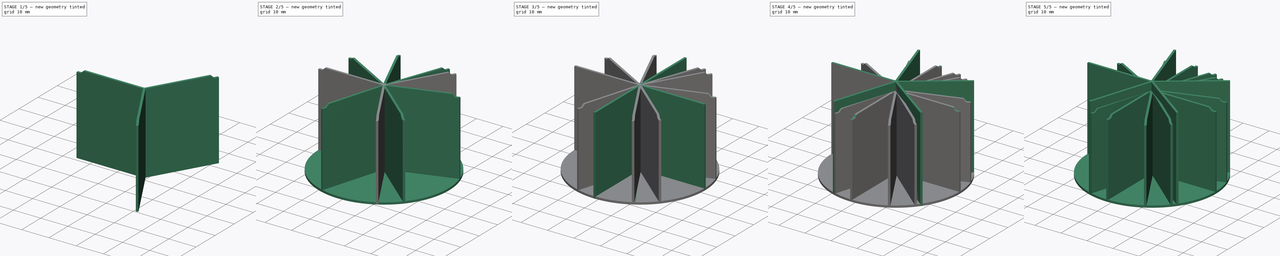
[diagram: build sequence overview — one tinted view per stage of 5, left to right]
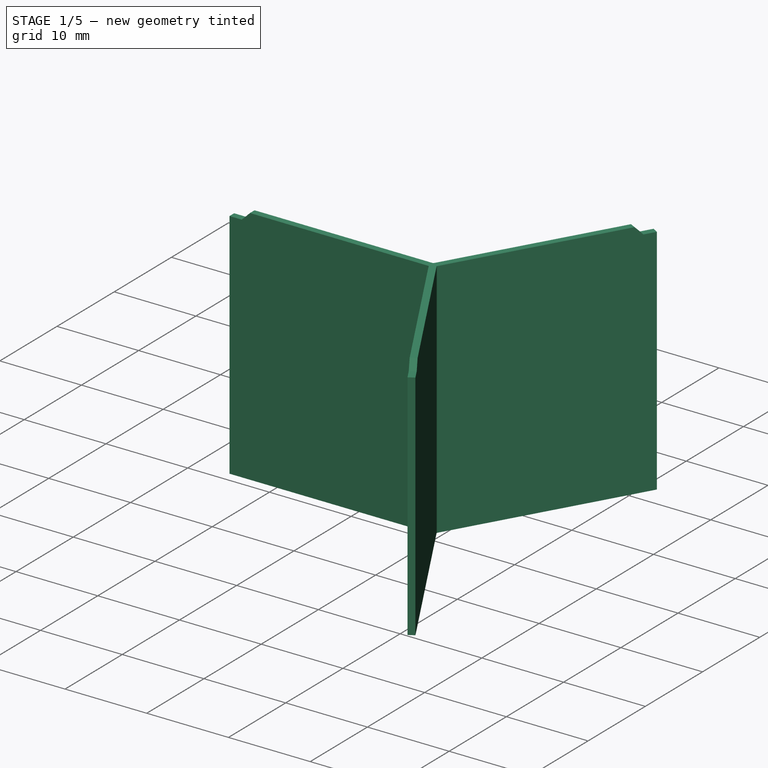
[diagram: stage 1 of 5 — iso view after this stage's code; geometry added in this stage tinted green]
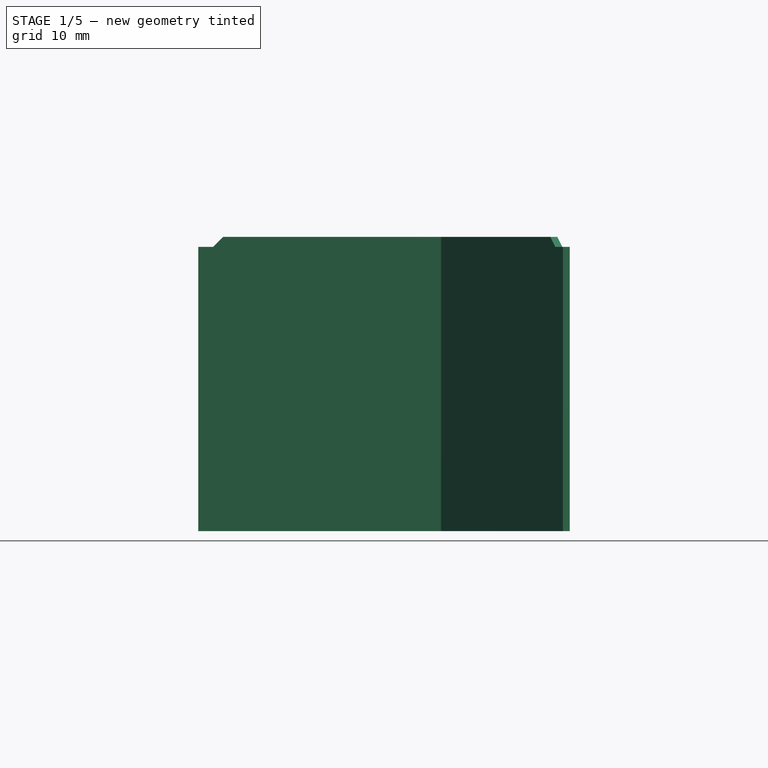
[diagram: stage 1 of 5 — front view after this stage's code; geometry added in this stage tinted green]
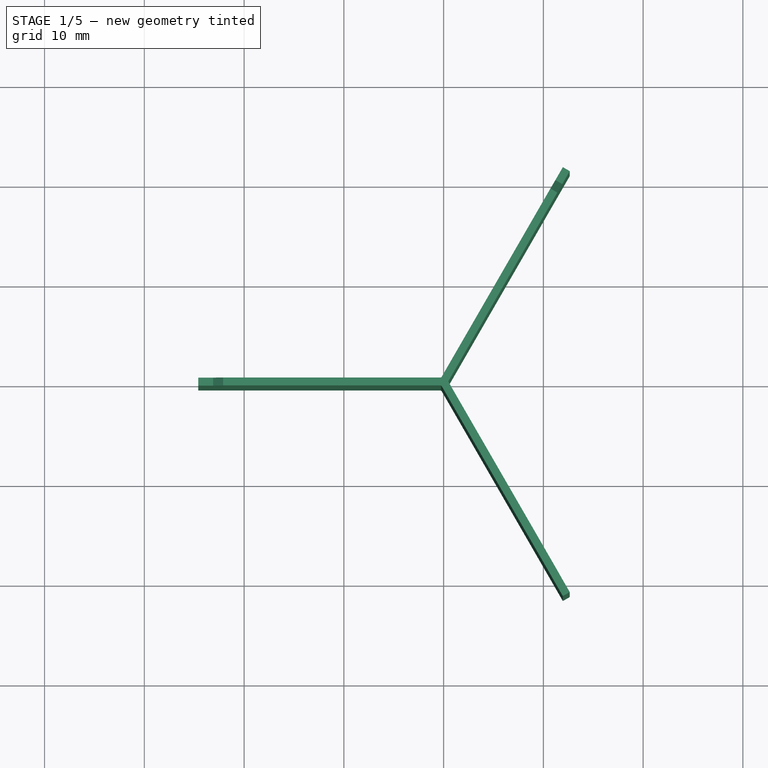
[diagram: stage 1 of 5 — top view after this stage's code; geometry added in this stage tinted green]
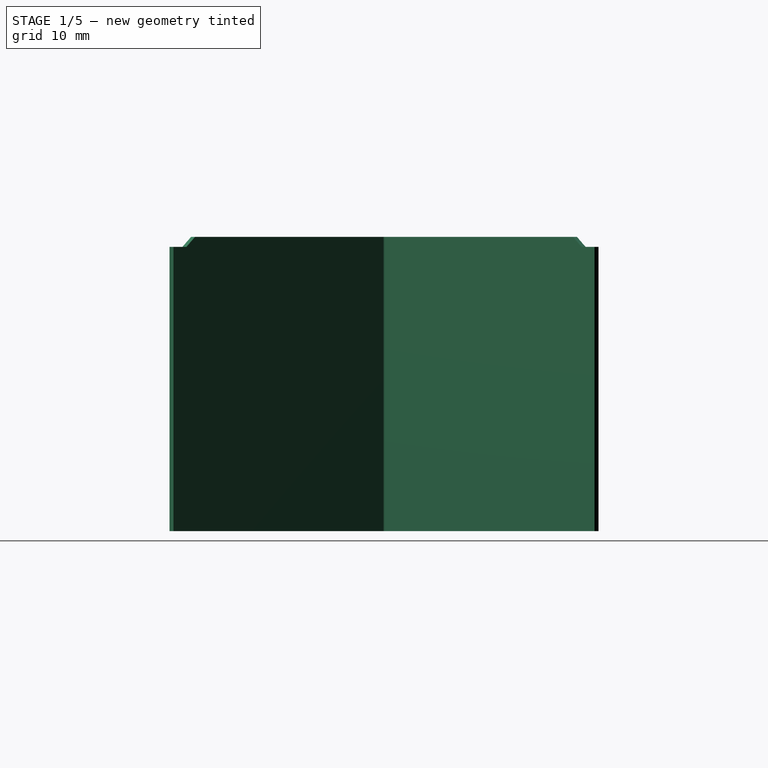
[diagram: stage 1 of 5 — right view after this stage's code; geometry added in this stage tinted green]
FCSTD DOCUMENT  (FreeCAD 1.0R39109 (Git))
Label: JarDivider
License: All rights reserved
LicenseURL: http://en.wikipedia.org/wiki/All_rights_reserved
objects: Sketcher::SketchObject×13, PartDesign::Pad×8, PartDesign::Body×5, PartDesign::ShapeBinder×4, PartDesign::Groove×4, PartDesign::Fillet×3
note: 80 computed .brp shape members not serialized (recipe doc carries the construction recipe); baked Part::Feature solids carry a one-line shape summary decoded from their .brp

FEATURE [PartDesign::Body] Body003  label="Growing"
  AllowCompound = false
  Group = -> [ShapeBinder002,Sketch009,Pad004,Sketch010,Groove002,Sketch011,Pad005]
  Origin = -> Origin003
  Tip = -> Pad005
FEATURE [PartDesign::ShapeBinder] ShapeBinder003
  Support = -> [Sketch]
  TraceSupport = false
FEATURE [Sketcher::SketchObject] Sketch012
  ArcFitTolerance = 1e-06
  AttachmentSupport = -> [XY_Plane001]
  ExternalGeometry = -> [ShapeBinder003]
  FullyConstrained = true
  MakeInternals = false
  MapMode = 5
  expr: .Constraints.Diameter = <<Sketch>>.Constraints.Diameter
  sketch-geometry (16):
    g0: Circle [constr] CenterX=0 CenterY=0 CenterZ=0 NormalX=0 NormalY=0 NormalZ=1 AngleXU=0 Radius=24.6
    g1: LineSegment [constr] StartX=12.3 StartY=21.3042 StartZ=0 EndX=-24.6 EndY=0 EndZ=0
    g2: LineSegment [constr] StartX=-24.6 StartY=0 StartZ=0 EndX=12.3 EndY=-21.3042 EndZ=0
    g3: LineSegment [constr] StartX=12.3 StartY=-21.3042 StartZ=0 EndX=12.3 EndY=21.3042 EndZ=0
    g4: LineSegment [constr] StartX=0 StartY=0 StartZ=0 EndX=12.3 EndY=21.3042 EndZ=0
    g5: LineSegment [constr] StartX=0 StartY=0 StartZ=0 EndX=12.3 EndY=-21.3042 EndZ=0
    g6: LineSegment [constr] StartX=0 StartY=0 StartZ=0 EndX=-24.6 EndY=0 EndZ=0
    g7: LineSegment StartX=11.952 StartY=21.5014 StartZ=0 EndX=-0.23094 EndY=0.4 EndZ=0
    g8: LineSegment StartX=12.6448 StartY=21.1014 StartZ=0 EndX=0.46188 EndY=-7.1e-15 EndZ=0
    g9: LineSegment StartX=12.6448 StartY=-21.1014 StartZ=0 EndX=0.46188 EndY=-7.1e-15 EndZ=0
    g10: LineSegment StartX=11.952 StartY=-21.5014 StartZ=0 EndX=-0.23094 EndY=-0.4 EndZ=0
    g11: LineSegment StartX=-24.5967 StartY=-0.4 StartZ=0 EndX=-0.23094 EndY=-0.4 EndZ=0
    g12: LineSegment StartX=-24.5967 StartY=0.4 StartZ=0 EndX=-0.23094 EndY=0.4 EndZ=0
    g13: LineSegment StartX=-24.5967 StartY=0.4 StartZ=0 EndX=-24.5967 EndY=-0.4 EndZ=0
    g14: LineSegment StartX=11.952 StartY=21.5014 StartZ=0 EndX=12.6448 EndY=21.1014 EndZ=0
    g15: LineSegment StartX=11.952 StartY=-21.5014 StartZ=0 EndX=12.6448 EndY=-21.1014 EndZ=0
  constraints (41):
    c: PointOnObject(g1,g0)
    c: Coincident(g1,g2)
    c: PointOnObject(g2,g0)
    c: Coincident(g2,g3)
    c: PointOnObject(g3,g0)
    c: Equal(g1,g2)
    c: Equal(g2,g3)
    c: Coincident(g4,g3)
    c: Coincident(g5,g2)
    c: Coincident(g6,g1)
    c: Diameter(g0) = 49.2  'Diameter'
    c: PointOnObject(g7,g0)
    c: PointOnObject(g9,g0)
    c: PointOnObject(g11,g0)
    c: Parallel(g11,g12)
    c: Parallel(g12,g6)
    c: Parallel(g7,g8)
    c: Parallel(g8,g4)
    c: Parallel(g9,g10)
    c: Parallel(g10,g5)
    c: Coincident(g13,g12)
    c: Coincident(g13,g11)
    c: Coincident(g14,g7)
    c: Coincident(g15,g10)
    c: Coincident(g15,g9)
    c: Coincident(g14,g8)
    c: Coincident(g9,g8)
    c: Coincident(g10,g11)
    c: Symmetric(g11,g12,g6)
    c: Symmetric(g10,g9,g5)
    c: Symmetric(g8,g7,g4)
    c: Equal(g14,g15)
    c: Distance(g13) = 0.8
    c: Coincident(g0,g4)
    c: Coincident(g0,g5)
    c: Coincident(g0,g6)
    c: Coincident(g0,g-3)
    c: Horizontal(g6)
    c: Coincident(g1,g3)
    c: Coincident(g7,g12)
    c: Equal(g13,g14)
FEATURE [PartDesign::Pad] Pad006
  Direction = (0,0,1)
  Length = 29.5
  Length2 = 10
  Profile = -> Sketch012
  ReferenceAxis = -> Sketch012 [N_Axis]
  Suppressed = false
  Type = 0
  expr: Length = 29.5 mm
FEATURE [Sketcher::SketchObject] Sketch013
  ArcFitTolerance = 1e-06
  AttachmentSupport = -> [XZ_Plane001]
  ExternalGeometry = -> [ShapeBinder003]
  FullyConstrained = true
  MakeInternals = false
  MapMode = 5
  Placement = pos=(0,0,0) rot=(1,0,0;1.5708rad)
  expr: Constraints[2] = <<Pad006>>.Length
  sketch-geometry (5):
    g0: LineSegment [constr] StartX=-24.6 StartY=0 StartZ=0 EndX=-24.6 EndY=29.5 EndZ=0
    g1: LineSegment StartX=-24.6 StartY=28.5 StartZ=0 EndX=-23.1 EndY=28.5 EndZ=0
    g2: LineSegment StartX=-23.1 StartY=28.5 StartZ=0 EndX=-22.1 EndY=29.5 EndZ=0
    g3: LineSegment StartX=-22.1 StartY=29.5 StartZ=0 EndX=-24.6 EndY=29.5 EndZ=0
    g4: LineSegment StartX=-24.6 StartY=29.5 StartZ=0 EndX=-24.6 EndY=28.5 EndZ=0
  constraints (14):
    c: Coincident(g0,g-3)
    c: Vertical(g0)
    c: DistanceY(g0,g0) = 29.5
    c: PointOnObject(g1,g0)
    c: Horizontal(g1)
    c: Coincident(g1,g2)
    c: Coincident(g2,g3)
    c: Coincident(g3,g0)
    c: Coincident(g3,g4)
    c: Coincident(g4,g1)
    c: Horizontal(g3)
    c: DistanceX(g1,g1) = 1.5
    c: Angle(g3,g2) = 0.785398
    c: DistanceY(g4,g4) = 1
FEATURE [Sketcher::SketchObject] Sketch014
  ArcFitTolerance = 1e-06
  AttachmentSupport = -> [XY_Plane001]
  ExternalGeometry = -> [ShapeBinder003]
  FullyConstrained = true
  MakeInternals = false
  MapMode = 5
  sketch-geometry (1):
    g0: Circle CenterX=0 CenterY=0 CenterZ=0 NormalX=0 NormalY=0 NormalZ=1 AngleXU=0 Radius=24.6
  constraints (2):
    c: Coincident(g0,g-3)
    c: Equal(g0,g-3)
FEATURE [PartDesign::Fillet] Fillet002
  Base = -> Pad006 [Edge2,Edge11,Edge20]
  BaseFeature = -> Pad006
  Radius = 0.15
  SupportTransform = false
  Suppressed = false
  UseAllEdges = false
FEATURE [PartDesign::Groove] Groove003
  Angle = 360
  Angle2 = 60
  Axis = (0,2e-16,1)
  Base = (0,0,0)
  BaseFeature = -> Fillet002
  Profile = -> Sketch013
  ReferenceAxis = -> Sketch013 [V_Axis]
  Reversed = true
  Suppressed = false
  Type = 0
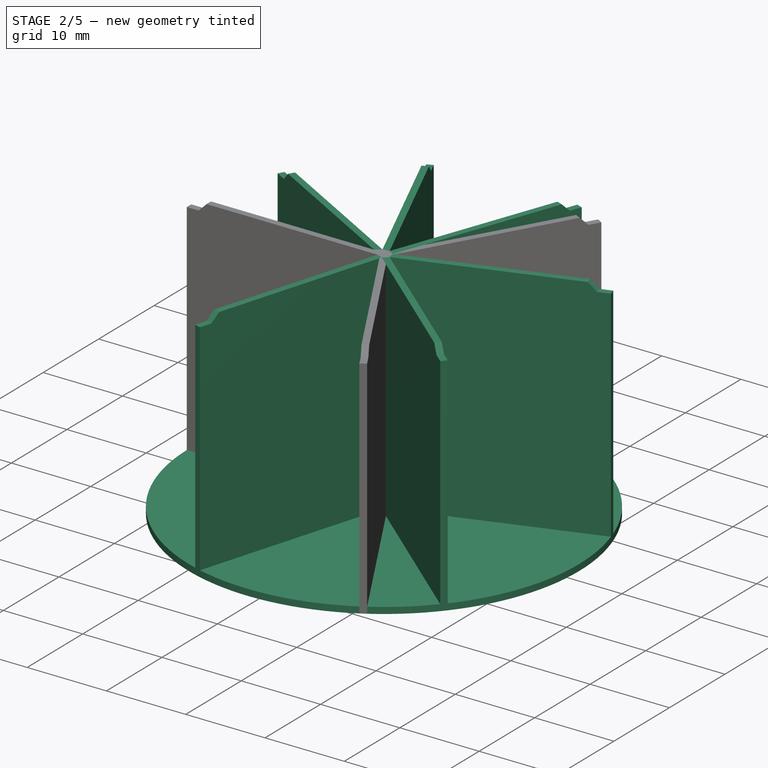
[diagram: stage 2 of 5 — iso view after this stage's code; geometry added in this stage tinted green]
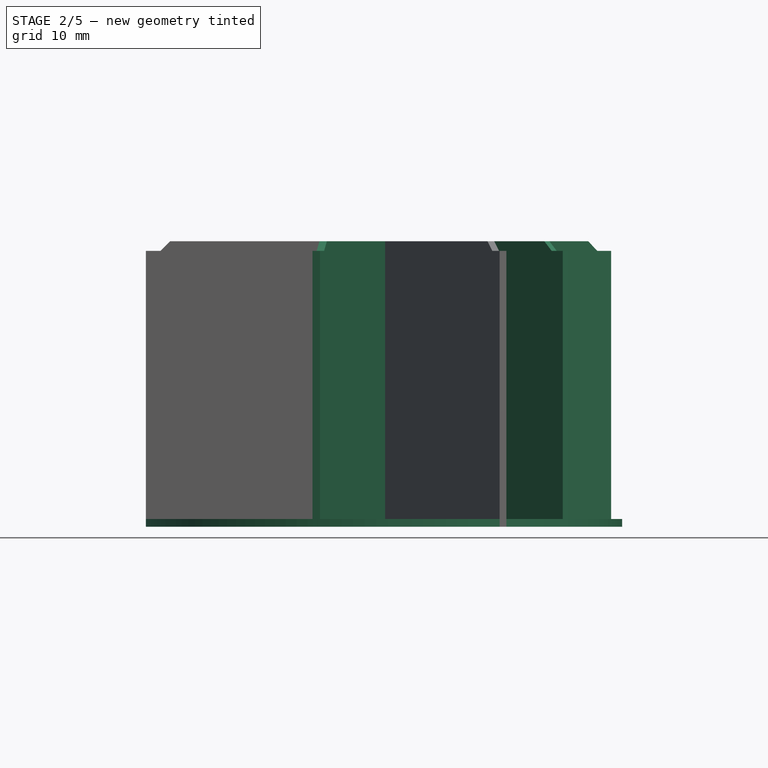
[diagram: stage 2 of 5 — front view after this stage's code; geometry added in this stage tinted green]
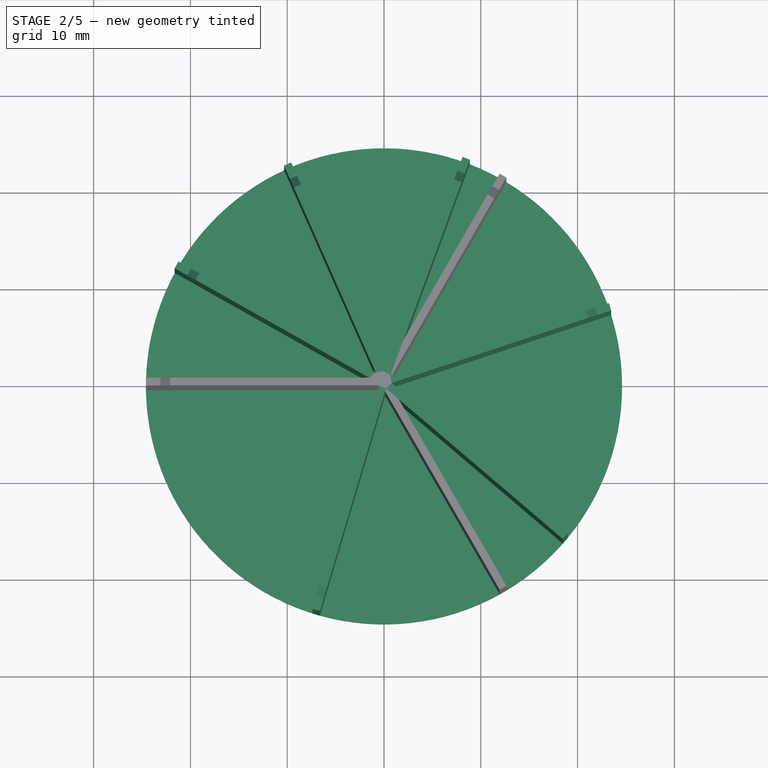
[diagram: stage 2 of 5 — top view after this stage's code; geometry added in this stage tinted green]
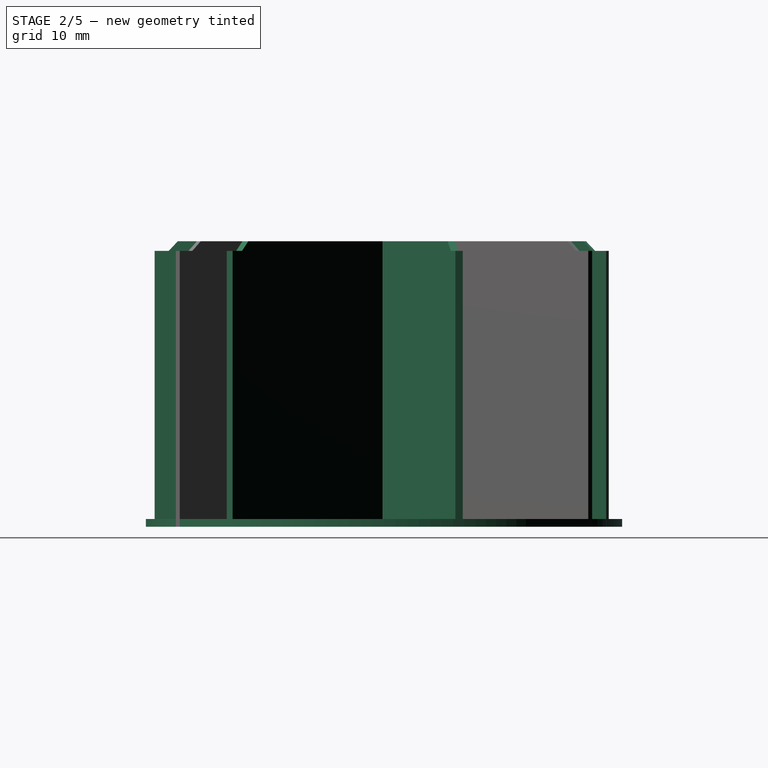
[diagram: stage 2 of 5 — right view after this stage's code; geometry added in this stage tinted green]
FEATURE [PartDesign::Body] Body001  label="4"
  AllowCompound = false
  Group = -> [ShapeBinder001,Sketch001,Pad001,Sketch007,Fillet001,Groove001,Sketch008,Pad003]
  Origin = -> Origin001
  Tip = -> Pad003
FEATURE [PartDesign::ShapeBinder] ShapeBinder002
  Support = -> [Sketch]
  TraceSupport = false
FEATURE [Sketcher::SketchObject] Sketch009
  ArcFitTolerance = 1e-06
  AttachmentSupport = -> [XY_Plane001]
  ExternalGeometry = -> [ShapeBinder002]
  FullyConstrained = true
  MakeInternals = false
  MapMode = 5
  sketch-geometry (77):
    g0: LineSegment [constr] StartX=22.1638 StartY=10.6735 StartZ=0 EndX=20.617 EndY=13.4202 EndZ=0
    g1: LineSegment [constr] StartX=20.617 StartY=13.4202 StartZ=0 EndX=18.7316 EndY=15.9464 EndZ=0
    g2: LineSegment [constr] StartX=18.7316 StartY=15.9464 StartZ=0 EndX=16.5386 EndY=18.2108 EndZ=0
    g3: LineSegment [constr] StartX=16.5386 StartY=18.2108 StartZ=0 EndX=14.0741 EndY=20.1762 EndZ=0
    g4: LineSegment [constr] StartX=14.0741 StartY=20.1762 StartZ=0 EndX=11.3784 EndY=21.8103 EndZ=0
    g5: LineSegment [constr] StartX=11.3784 StartY=21.8103 StartZ=0 EndX=8.49598 EndY=23.0863 EndZ=0
    g6: LineSegment [constr] StartX=8.49598 StartY=23.0863 StartZ=0 EndX=5.47401 EndY=23.9832 EndZ=0
    g7: LineSegment [constr] StartX=5.47401 StartY=23.9832 StartZ=0 EndX=2.36217 EndY=24.4863 EndZ=0
    g8: LineSegment [constr] StartX=2.36217 StartY=24.4863 StartZ=0 EndX=-0.788469 EndY=24.5874 EndZ=0
    g9: LineSegment [constr] StartX=-0.788469 StartY=24.5874 StartZ=0 EndX=-3.92616 EndY=24.2847 EndZ=0
    g10: LineSegment [constr] StartX=-3.92616 StartY=24.2847 StartZ=0 EndX=-6.99938 EndY=23.5832 EndZ=0
    g11: LineSegment [constr] StartX=-6.99938 StartY=23.5832 StartZ=0 EndX=-9.95767 EndY=22.4946 EndZ=0
    g12: LineSegment [constr] StartX=-9.95767 StartY=22.4946 StartZ=0 EndX=-12.7525 EndY=21.0365 EndZ=0
    g13: LineSegment [constr] StartX=-12.7525 StartY=21.0365 StartZ=0 EndX=-15.3378 EndY=19.2331 EndZ=0
    g14: LineSegment [constr] StartX=-15.3378 StartY=19.2331 StartZ=0 EndX=-17.6714 EndY=17.1138 EndZ=0
    g15: LineSegment [constr] StartX=-17.6714 StartY=17.1138 StartZ=0 EndX=-19.7148 EndY=14.7135 EndZ=0
    g16: LineSegment [constr] StartX=-19.7148 StartY=14.7135 StartZ=0 EndX=-21.4344 EndY=12.0717 EndZ=0
    g17: LineSegment [constr] StartX=-21.4344 StartY=12.0717 StartZ=0 EndX=-22.8022 EndY=9.23157 EndZ=0
    g18: LineSegment [constr] StartX=-22.8022 StartY=9.23157 StartZ=0 EndX=-23.7955 EndY=6.2399 EndZ=0
    g19: LineSegment [constr] StartX=-23.7955 StartY=6.2399 StartZ=0 EndX=-24.398 EndY=3.14578 EndZ=0
    g20: LineSegment [constr] StartX=-24.398 StartY=3.14578 StartZ=0 EndX=-24.6 EndY=0 EndZ=0
    g21: LineSegment [constr] StartX=-24.6 StartY=0 StartZ=0 EndX=-24.398 EndY=-3.14578 EndZ=0
    g22: LineSegment [constr] StartX=-24.398 StartY=-3.14578 StartZ=0 EndX=-23.7955 EndY=-6.2399 EndZ=0
    g23: LineSegment [constr] StartX=-23.7955 StartY=-6.2399 StartZ=0 EndX=-22.8022 EndY=-9.23157 EndZ=0
    g24: LineSegment [constr] StartX=-22.8022 StartY=-9.23157 StartZ=0 EndX=-21.4344 EndY=-12.0717 EndZ=0
    g25: LineSegment [constr] StartX=-21.4344 StartY=-12.0717 StartZ=0 EndX=-19.7148 EndY=-14.7135 EndZ=0
    g26: LineSegment [constr] StartX=-19.7148 StartY=-14.7135 StartZ=0 EndX=-17.6714 EndY=-17.1138 EndZ=0
    g27: LineSegment [constr] StartX=-17.6714 StartY=-17.1138 StartZ=0 EndX=-15.3378 EndY=-19.2331 EndZ=0
    g28: LineSegment [constr] StartX=-15.3378 StartY=-19.2331 StartZ=0 EndX=-12.7525 EndY=-21.0365 EndZ=0
    g29: LineSegment [constr] StartX=-12.7525 StartY=-21.0365 StartZ=0 EndX=-9.95767 EndY=-22.4946 EndZ=0
    g30: LineSegment [constr] StartX=-9.95767 StartY=-22.4946 StartZ=0 EndX=-6.99938 EndY=-23.5832 EndZ=0
    g31: LineSegment [constr] StartX=-6.99938 StartY=-23.5832 StartZ=0 EndX=-3.92616 EndY=-24.2847 EndZ=0
    g32: LineSegment [constr] StartX=-3.92616 StartY=-24.2847 StartZ=0 EndX=-0.788469 EndY=-24.5874 EndZ=0
    g33: LineSegment [constr] StartX=-0.788469 StartY=-24.5874 StartZ=0 EndX=2.36217 EndY=-24.4863 EndZ=0
    g34: LineSegment [constr] StartX=2.36217 StartY=-24.4863 StartZ=0 EndX=5.47401 EndY=-23.9832 EndZ=0
    g35: LineSegment [constr] StartX=5.47401 StartY=-23.9832 StartZ=0 EndX=8.49598 EndY=-23.0863 EndZ=0
    g36: LineSegment [constr] StartX=8.49598 StartY=-23.0863 StartZ=0 EndX=11.3784 EndY=-21.8103 EndZ=0
    g37: LineSegment [constr] StartX=11.3784 StartY=-21.8103 StartZ=0 EndX=14.0741 EndY=-20.1762 EndZ=0
    g38: LineSegment [constr] StartX=14.0741 StartY=-20.1762 StartZ=0 EndX=16.5386 EndY=-18.2108 EndZ=0
    g39: LineSegment [constr] StartX=16.5386 StartY=-18.2108 StartZ=0 EndX=18.7316 EndY=-15.9464 EndZ=0
    g40: LineSegment [constr] StartX=18.7316 StartY=-15.9464 StartZ=0 EndX=20.617 EndY=-13.4202 EndZ=0
    g41: LineSegment [constr] StartX=20.617 StartY=-13.4202 StartZ=0 EndX=22.1638 EndY=-10.6735 EndZ=0
    g42: LineSegment [constr] StartX=22.1638 StartY=-10.6735 StartZ=0 EndX=23.3468 EndY=-7.75166 EndZ=0
    g43: LineSegment [constr] StartX=23.3468 StartY=-7.75166 StartZ=0 EndX=24.1464 EndY=-4.7025 EndZ=0
    g44: LineSegment [constr] StartX=24.1464 StartY=-4.7025 StartZ=0 EndX=24.5495 EndY=-1.57613 EndZ=0
    g45: LineSegment [constr] StartX=24.5495 StartY=-1.57613 StartZ=0 EndX=24.5495 EndY=1.57613 EndZ=0
    g46: LineSegment [constr] StartX=24.5495 StartY=1.57613 StartZ=0 EndX=24.1464 EndY=4.7025 EndZ=0
    g47: LineSegment [constr] StartX=24.1464 StartY=4.7025 StartZ=0 EndX=23.3468 EndY=7.75166 EndZ=0
    g48: LineSegment [constr] StartX=23.3468 StartY=7.75166 StartZ=0 EndX=22.1638 EndY=10.6735 EndZ=0
    g49: LineSegment [constr] StartX=-24.6 StartY=0 StartZ=0 EndX=0 EndY=0 EndZ=0
    g50: LineSegment [constr] StartX=0 StartY=0 StartZ=0 EndX=-21.4344 EndY=12.0717 EndZ=0
    g51: LineSegment [constr] StartX=0 StartY=0 StartZ=0 EndX=-9.95767 EndY=22.4946 EndZ=0
    g52: LineSegment [constr] StartX=0 StartY=0 StartZ=0 EndX=8.49598 EndY=23.0863 EndZ=0
    g53: LineSegment [constr] StartX=23.3468 StartY=7.75166 StartZ=0 EndX=0 EndY=0 EndZ=0
    g54: LineSegment [constr] StartX=18.7316 StartY=-15.9464 StartZ=0 EndX=0 EndY=0 EndZ=0
    g55: LineSegment [constr] StartX=-6.99938 StartY=-23.5832 StartZ=0 EndX=9e-16 EndY=0 EndZ=0
    g56: LineSegment StartX=-24.5967 StartY=-0.4 StartZ=0 EndX=-24.5967 EndY=0.4 EndZ=0
    g57: LineSegment StartX=-21.6279 StartY=11.7215 StartZ=0 EndX=-21.2353 EndY=12.4186 EndZ=0
    g58: LineSegment StartX=-10.3221 StartY=22.3297 StartZ=0 EndX=-9.59059 EndY=22.6535 EndZ=0
    g59: LineSegment StartX=8.11947 StartY=23.2214 StartZ=0 EndX=8.87024 EndY=22.9451 EndZ=0
    g60: LineSegment StartX=23.2176 StartY=8.13026 StartZ=0 EndX=23.4697 EndY=7.37102 EndZ=0
    g61: LineSegment StartX=18.4698 StartY=-16.2489 StartZ=0 EndX=18.9884 EndY=-15.6397 EndZ=0
    g62: LineSegment StartX=-7.38192 StartY=-23.4663 StartZ=0 EndX=-6.61499 EndY=-23.6939 EndZ=0
    g63: LineSegment StartX=-21.2353 StartY=12.4186 StartZ=0 EndX=-0.853422 EndY=0.939713 EndZ=0
    g64: LineSegment StartX=-21.6279 StartY=11.7215 StartZ=0 EndX=-1.52537 EndY=0.4 EndZ=0
    g65: LineSegment StartX=-24.5967 StartY=0.4 StartZ=0 EndX=-1.52537 EndY=0.4 EndZ=0
    g66: LineSegment StartX=-24.5967 StartY=-0.4 StartZ=0 EndX=-0.535964 EndY=-0.4 EndZ=0
    g67: LineSegment StartX=-10.3221 StartY=22.3297 StartZ=0 EndX=-0.853422 EndY=0.939713 EndZ=0
    g68: LineSegment StartX=-9.59059 StartY=22.6535 StartZ=0 EndX=-0.034164 EndY=1.06536 EndZ=0
    g69: LineSegment StartX=8.11947 StartY=23.2214 StartZ=0 EndX=-0.034164 EndY=1.06536 EndZ=0
    g70: LineSegment StartX=8.87024 StartY=22.9451 StartZ=0 EndX=0.662251 EndY=0.641354 EndZ=0
    g71: LineSegment StartX=23.2176 StartY=8.13026 StartZ=0 EndX=0.662251 EndY=0.641354 EndZ=0
    g72: LineSegment StartX=23.4697 StartY=7.37102 StartZ=0 EndX=0.800101 EndY=-0.15582 EndZ=0
    g73: LineSegment StartX=18.9884 StartY=-15.6397 StartZ=0 EndX=0.800101 EndY=-0.15582 EndZ=0
    g74: LineSegment StartX=18.4698 StartY=-16.2489 StartZ=0 EndX=0.208623 EndY=-0.70292 EndZ=0
    g75: LineSegment StartX=-6.61499 StartY=-23.6939 StartZ=0 EndX=0.208623 EndY=-0.70292 EndZ=0
    g76: LineSegment StartX=-7.38192 StartY=-23.4663 StartZ=0 EndX=-0.535964 EndY=-0.4 EndZ=0
  constraints (170):
    c: Coincident(g0,g1)
    c: Coincident(g1,g2)
    c: Coincident(g2,g3)
    c: Coincident(g3,g4)
    c: Coincident(g4,g5)
    c: Coincident(g5,g6)
    c: Coincident(g6,g7)
    c: Coincident(g7,g8)
    c: Coincident(g8,g9)
    c: Coincident(g9,g10)
    c: Coincident(g10,g11)
    c: Coincident(g11,g12)
    c: Coincident(g12,g13)
    c: Coincident(g13,g14)
    c: Coincident(g14,g15)
    c: Coincident(g15,g16)
    c: Coincident(g16,g17)
    c: Coincident(g17,g18)
    c: Coincident(g18,g19)
    c: Coincident(g19,g20)
    c: Coincident(g20,g21)
    c: Coincident(g21,g22)
    c: Coincident(g22,g23)
    c: Coincident(g23,g24)
    c: Coincident(g24,g25)
    c: Coincident(g25,g26)
    c: Coincident(g26,g27)
    c: Coincident(g27,g28)
    c: Coincident(g28,g29)
    c: Coincident(g29,g30)
    c: Coincident(g30,g31)
    c: Coincident(g31,g32)
    c: Coincident(g32,g33)
    c: Coincident(g33,g34)
    c: Coincident(g34,g35)
    c: Coincident(g35,g36)
    c: Coincident(g36,g37)
    c: Coincident(g37,g38)
    c: Coincident(g38,g39)
    c: Coincident(g39,g40)
    c: Coincident(g40,g41)
    c: Coincident(g41,g42)
    c: Coincident(g42,g43)
    c: Coincident(g43,g44)
    c: Coincident(g44,g45)
    c: Coincident(g45,g46)
    c: Coincident(g46,g47)
    c: Coincident(g47,g48)
    c: Coincident(g48,g0)
    c: Equal(g0, g1-g48) x48
    c: PointOnObject(g48,g-3)
    c: PointOnObject(g0,g-3)
    c: PointOnObject(g1,g-3)
    c: PointOnObject(g2,g-3)
    c: PointOnObject(g3,g-3)
    c: PointOnObject(g4,g-3)
    c: PointOnObject(g5,g-3)
    c: PointOnObject(g6,g-3)
    c: PointOnObject(g7,g-3)
    c: PointOnObject(g8,g-3)
    c: PointOnObject(g9,g-3)
    c: PointOnObject(g10,g-3)
    c: PointOnObject(g11,g-3)
    c: PointOnObject(g12,g-3)
    c: PointOnObject(g13,g-3)
    c: PointOnObject(g14,g-3)
    c: PointOnObject(g15,g-3)
    c: PointOnObject(g16,g-3)
    c: PointOnObject(g17,g-3)
    c: PointOnObject(g18,g-3)
    c: PointOnObject(g19,g-3)
    c: PointOnObject(g20,g-3)
    c: PointOnObject(g21,g-3)
    c: PointOnObject(g22,g-3)
    c: PointOnObject(g23,g-3)
    c: PointOnObject(g24,g-3)
    c: PointOnObject(g25,g-3)
    c: PointOnObject(g26,g-3)
    c: PointOnObject(g27,g-3)
    c: PointOnObject(g28,g-3)
    c: PointOnObject(g29,g-3)
    c: PointOnObject(g30,g-3)
    c: PointOnObject(g31,g-3)
    c: PointOnObject(g32,g-3)
    c: PointOnObject(g33,g-3)
    c: PointOnObject(g34,g-3)
    c: PointOnObject(g35,g-3)
    c: PointOnObject(g36,g-3)
    c: PointOnObject(g37,g-3)
    c: PointOnObject(g38,g-3)
    c: PointOnObject(g39,g-3)
    c: PointOnObject(g40,g-3)
    c: PointOnObject(g41,g-3)
    c: PointOnObject(g42,g-3)
    c: PointOnObject(g43,g-3)
    c: PointOnObject(g44,g-3)
    c: PointOnObject(g45,g-3)
    c: PointOnObject(g46,g-3)
    c: PointOnObject(g47,g-3)
    c: Coincident(g49,g20)
    c: Horizontal(g49)
    c: Coincident(g49,g-3)
    c: Coincident(g50,g16)
    c: Coincident(g51,g11)
    c: Coincident(g52,g5)
    c: Coincident(g53,g47)
    c: Coincident(g54,g39)
    c: Coincident(g55,g30)
    c: Coincident(g50,g51)
    c: Coincident(g50,g52)
    c: Coincident(g50,g53)
    c: Coincident(g50,g54)
    c: Coincident(g50,g55)
    c: Coincident(g50,g-3)
    c: PointOnObject(g56,g-3)
    c: Symmetric(g56,g56,g49)
    c: DistanceY(g56,g56) = 0.8
    c: PointOnObject(g57,g-3)
    c: Symmetric(g57,g57,g50)
    c: Equal(g57,g56)
    c: PointOnObject(g58,g-3)
    c: Symmetric(g58,g58,g51)
    c: Equal(g57,g58)
    c: Equal(g58,g59)
    c: Equal(g59,g60)
    c: Equal(g60,g61)
    c: Equal(g61,g62)
    c: PointOnObject(g59,g-3)
    c: Symmetric(g59,g59,g52)
    c: PointOnObject(g60,g-3)
    c: Symmetric(g60,g60,g53)
    c: PointOnObject(g61,g-3)
    c: Symmetric(g61,g61,g54)
    c: PointOnObject(g62,g-3)
    c: Symmetric(g62,g62,g55)
    c: Coincident(g63,g57)
    c: Coincident(g64,g57)
    c: Coincident(g65,g56)
    c: Horizontal(g65)
    c: Coincident(g66,g56)
    c: Horizontal(g66)
    c: Coincident(g67,g58)
    c: Coincident(g68,g58)
    c: Coincident(g69,g59)
    c: Coincident(g70,g59)
    c: Coincident(g71,g60)
    c: Coincident(g72,g60)
    c: Coincident(g73,g61)
    c: Coincident(g74,g61)
    c: Coincident(g75,g62)
    c: Coincident(g76,g62)
    c: Parallel(g75,g76)
    c: Parallel(g76,g55)
    c: Parallel(g63,g50)
    c: Parallel(g50,g64)
    c: Parallel(g67,g51)
    c: Parallel(g51,g68)
    c: Parallel(g69,g52)
    c: Parallel(g52,g70)
    c: Parallel(g71,g53)
    c: Parallel(g53,g72)
    c: Parallel(g73,g54)
    c: Parallel(g54,g74)
    c: Coincident(g75,g74)
    c: Coincident(g73,g72)
    c: Coincident(g71,g70)
    c: Coincident(g69,g68)
    c: Coincident(g67,g63)
    c: Coincident(g64,g65)
    c: Coincident(g66,g76)
FEATURE [PartDesign::Pad] Pad004
  Direction = (0,0,1)
  Length = 29.5
  Length2 = 10
  Profile = -> Sketch009
  ReferenceAxis = -> Sketch009 [N_Axis]
  Suppressed = false
  Type = 0
  expr: Length = 29.5 mm
FEATURE [Sketcher::SketchObject] Sketch010
  ArcFitTolerance = 1e-06
  AttachmentSupport = -> [XZ_Plane001]
  ExternalGeometry = -> [ShapeBinder002]
  FullyConstrained = true
  MakeInternals = false
  MapMode = 5
  Placement = pos=(0,0,0) rot=(1,0,0;1.5708rad)
  expr: Constraints[2] = <<Pad004>>.Length
  sketch-geometry (5):
    g0: LineSegment [constr] StartX=-24.6 StartY=0 StartZ=0 EndX=-24.6 EndY=29.5 EndZ=0
    g1: LineSegment StartX=-24.6 StartY=28.5 StartZ=0 EndX=-23.1 EndY=28.5 EndZ=0
    g2: LineSegment StartX=-23.1 StartY=28.5 StartZ=0 EndX=-22.1 EndY=29.5 EndZ=0
    g3: LineSegment StartX=-22.1 StartY=29.5 StartZ=0 EndX=-24.6 EndY=29.5 EndZ=0
    g4: LineSegment StartX=-24.6 StartY=29.5 StartZ=0 EndX=-24.6 EndY=28.5 EndZ=0
  constraints (14):
    c: Coincident(g0,g-3)
    c: Vertical(g0)
    c: DistanceY(g0,g0) = 29.5
    c: PointOnObject(g1,g0)
    c: Horizontal(g1)
    c: Coincident(g1,g2)
    c: Coincident(g2,g3)
    c: Coincident(g3,g0)
    c: Coincident(g3,g4)
    c: Coincident(g4,g1)
    c: Horizontal(g3)
    c: DistanceX(g1,g1) = 1.5
    c: Angle(g3,g2) = 0.785398
    c: DistanceY(g4,g4) = 1
FEATURE [PartDesign::Groove] Groove002
  Angle = 360
  Angle2 = 60
  Axis = (0,2e-16,1)
  Base = (0,0,0)
  BaseFeature = -> Pad004
  Profile = -> Sketch010
  ReferenceAxis = -> Sketch010 [V_Axis]
  Reversed = true
  Suppressed = false
  Type = 0
FEATURE [PartDesign::Pad] Pad007
  BaseFeature = -> Groove003
  Direction = (0,0,1)
  Length = 0.8
  Length2 = 10
  Profile = -> Sketch014
  ReferenceAxis = -> Sketch014 [N_Axis]
  Refine = true
  Suppressed = false
  Type = 0
FEATURE [PartDesign::Body] Body004  label="3"
  AllowCompound = false
  Group = -> [ShapeBinder003,Sketch012,Pad006,Sketch013,Fillet002,Groove003,Sketch014,Pad007]
  Origin = -> Origin004
  Tip = -> Pad007
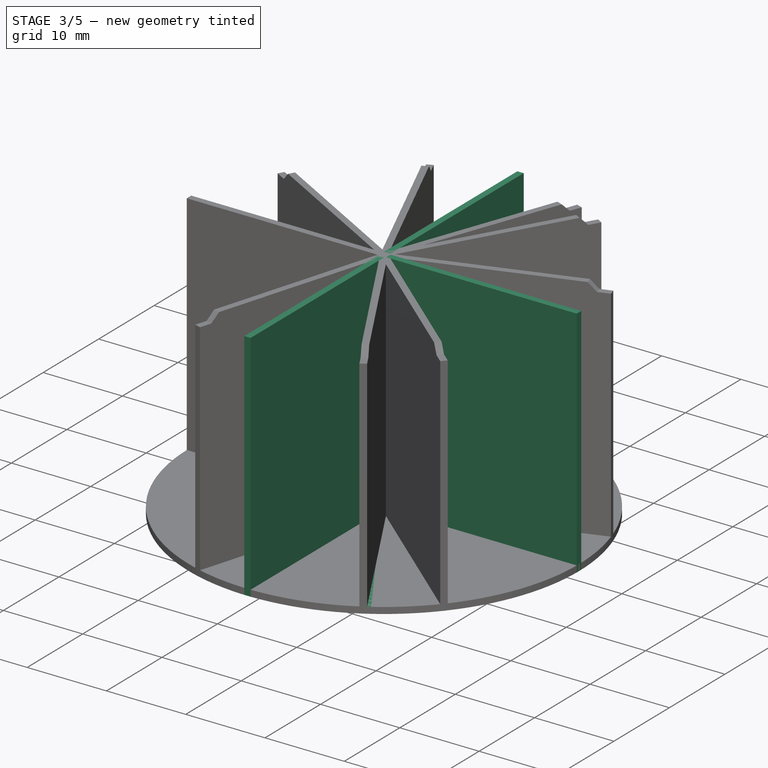
[diagram: stage 3 of 5 — iso view after this stage's code; geometry added in this stage tinted green]
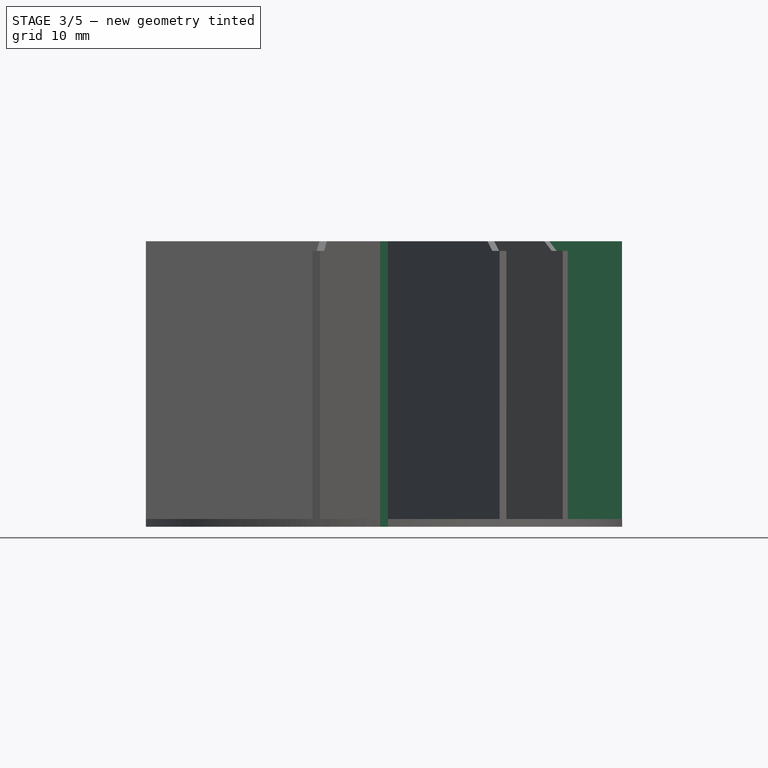
[diagram: stage 3 of 5 — front view after this stage's code; geometry added in this stage tinted green]
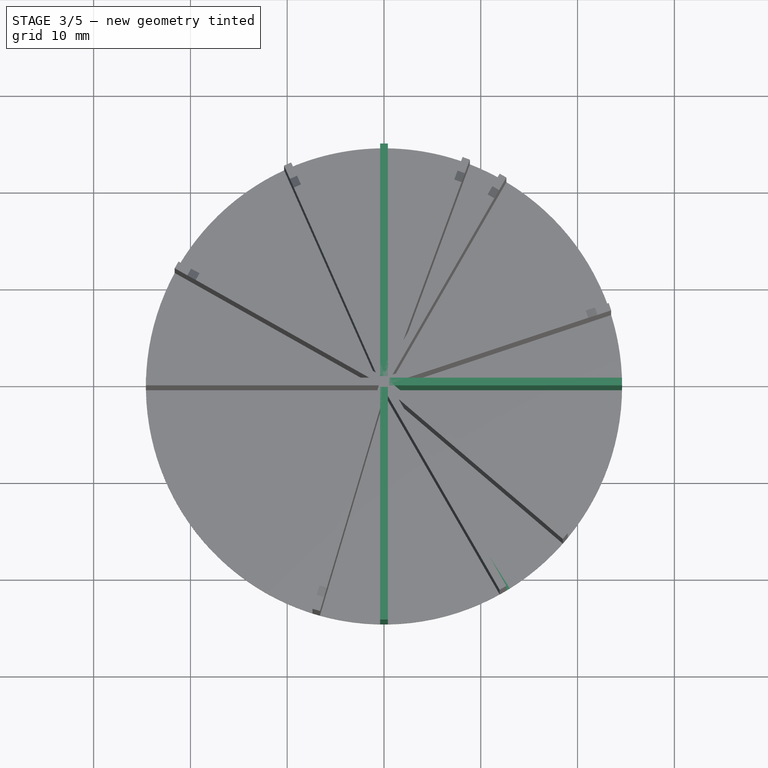
[diagram: stage 3 of 5 — top view after this stage's code; geometry added in this stage tinted green]
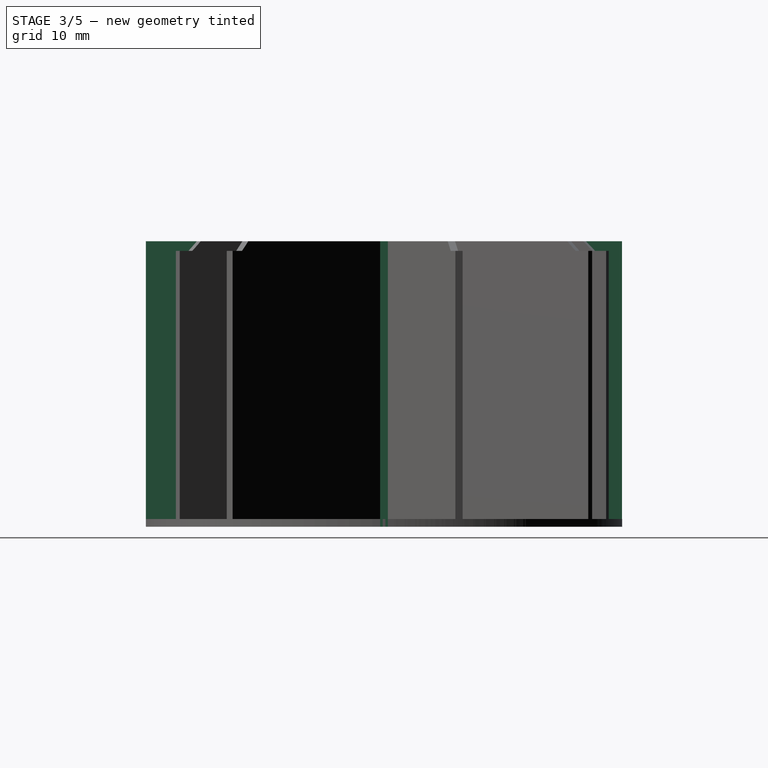
[diagram: stage 3 of 5 — right view after this stage's code; geometry added in this stage tinted green]
FEATURE [PartDesign::Body] Body  label="5"
  AllowCompound = false
  Group = -> [ShapeBinder,Sketch004,Pad,Fillet,Sketch005,Groove,Sketch006,Pad002]
  Origin = -> Origin
  Tip = -> Pad002
FEATURE [PartDesign::ShapeBinder] ShapeBinder001
  Support = -> [Sketch]
  TraceSupport = false
FEATURE [Sketcher::SketchObject] Sketch001
  ArcFitTolerance = 1e-06
  AttachmentSupport = -> [XY_Plane001]
  ExternalGeometry = -> [ShapeBinder001]
  FullyConstrained = true
  MakeInternals = false
  MapMode = 5
  expr: .Constraints.Diameter = <<Sketch>>.Constraints.Diameter
  sketch-geometry (21):
    g0: Circle [constr] CenterX=0 CenterY=0 CenterZ=0 NormalX=0 NormalY=0 NormalZ=1 AngleXU=0 Radius=24.6
    g1: LineSegment [constr] StartX=-4.7e-15 StartY=24.6 StartZ=0 EndX=-24.6 EndY=3.6e-15 EndZ=0
    g2: LineSegment [constr] StartX=-24.6 StartY=0 StartZ=0 EndX=-3.6e-15 EndY=-24.6 EndZ=0
    g3: LineSegment [constr] StartX=-7e-16 StartY=-24.6 StartZ=0 EndX=24.6 EndY=-3.6e-15 EndZ=0
    g4: LineSegment [constr] StartX=24.6 StartY=0 StartZ=0 EndX=-3.6e-15 EndY=24.6 EndZ=0
    g5: LineSegment [constr] StartX=0 StartY=0 StartZ=0 EndX=-4.7e-15 EndY=24.6 EndZ=0
    g6: LineSegment [constr] StartX=0 StartY=0 StartZ=0 EndX=24.6 EndY=0 EndZ=0
    g7: LineSegment [constr] StartX=0 StartY=0 StartZ=0 EndX=-7e-16 EndY=-24.6 EndZ=0
    g8: LineSegment [constr] StartX=0 StartY=0 StartZ=0 EndX=-24.6 EndY=0 EndZ=0
    g9: LineSegment StartX=-0.4 StartY=24.5967 StartZ=0 EndX=-0.4 EndY=0.4 EndZ=0
    g10: LineSegment StartX=0.4 StartY=24.5967 StartZ=0 EndX=0.4 EndY=0.4 EndZ=0
    g11: LineSegment StartX=24.5967 StartY=0.4 StartZ=0 EndX=0.4 EndY=0.4 EndZ=0
    g12: LineSegment StartX=24.5967 StartY=-0.4 StartZ=0 EndX=0.4 EndY=-0.4 EndZ=0
    g13: LineSegment StartX=0.4 StartY=-24.5967 StartZ=0 EndX=0.4 EndY=-0.4 EndZ=0
    g14: LineSegment StartX=-0.4 StartY=-24.5967 StartZ=0 EndX=-0.4 EndY=-0.4 EndZ=0
    g15: LineSegment StartX=-24.5967 StartY=-0.4 StartZ=0 EndX=-0.4 EndY=-0.4 EndZ=0
    g16: LineSegment StartX=-24.5967 StartY=0.4 StartZ=0 EndX=-0.4 EndY=0.4 EndZ=0
    g17: LineSegment StartX=-24.5967 StartY=0.4 StartZ=0 EndX=-24.5967 EndY=-0.4 EndZ=0
    g18: LineSegment StartX=-0.4 StartY=24.5967 StartZ=0 EndX=0.4 EndY=24.5967 EndZ=0
    g19: LineSegment StartX=24.5967 StartY=0.4 StartZ=0 EndX=24.5967 EndY=-0.4 EndZ=0
    g20: LineSegment StartX=-0.4 StartY=-24.5967 StartZ=0 EndX=0.4 EndY=-24.5967 EndZ=0
  constraints (54):
    c: PointOnObject(g1,g0)
    c: Coincident(g1,g2)
    c: PointOnObject(g2,g0)
    c: Coincident(g2,g3)
    c: PointOnObject(g3,g0)
    c: Coincident(g3,g4)
    c: PointOnObject(g4,g0)
    c: Equal(g1,g2)
    c: Equal(g2,g3)
    c: Equal(g3,g4)
    c: Coincident(g6,g3)
    c: Coincident(g7,g2)
    c: Coincident(g8,g1)
    c: Diameter(g0) = 49.2  'Diameter'
    c: PointOnObject(g9,g0)
    c: PointOnObject(g11,g0)
    c: PointOnObject(g13,g0)
    c: PointOnObject(g15,g0)
    c: Parallel(g15,g16)
    c: Parallel(g16,g8)
    c: Parallel(g9,g10)
    c: Parallel(g10,g5)
    c: Parallel(g11,g12)
    c: Parallel(g12,g6)
    c: Parallel(g13,g14)
    c: Parallel(g14,g7)
    c: Coincident(g17,g16)
    c: Coincident(g17,g15)
    c: Coincident(g18,g9)
    c: Coincident(g19,g11)
    c: Coincident(g20,g14)
    c: Coincident(g20,g13)
    c: Coincident(g19,g12)
    c: Coincident(g18,g10)
    c: Coincident(g10,g11)
    c: Coincident(g13,g12)
    c: Coincident(g14,g15)
    c: Symmetric(g15,g16,g8)
    c: Symmetric(g14,g13,g7)
    c: Symmetric(g12,g11,g6)
    c: Symmetric(g10,g9,g5)
    c: Equal(g18,g19)
    c: Equal(g19,g20)
    c: Distance(g17) = 0.8
    c: Coincident(g16,g9)
    c: Coincident(g4,g5)
    c: Coincident(g1,g4)
    c: Equal(g17,g18)
    c: Coincident(g0,g5)
    c: Coincident(g0,g6)
    c: Coincident(g0,g7)
    c: Coincident(g0,g8)
    c: Coincident(g0,g-3)
    c: Horizontal(g8)
FEATURE [PartDesign::Pad] Pad001
  Direction = (0,0,1)
  Length = 29.5
  Length2 = 10
  Profile = -> Sketch001
  ReferenceAxis = -> Sketch001 [N_Axis]
  Suppressed = false
  Type = 0
  expr: Length = 29.5 mm
FEATURE [Sketcher::SketchObject] Sketch007
  ArcFitTolerance = 1e-06
  AttachmentSupport = -> [XZ_Plane001]
  ExternalGeometry = -> [ShapeBinder001]
  FullyConstrained = true
  MakeInternals = false
  MapMode = 5
  Placement = pos=(0,0,0) rot=(1,0,0;1.5708rad)
  expr: Constraints[2] = <<Pad001>>.Length
  sketch-geometry (5):
    g0: LineSegment [constr] StartX=-24.6 StartY=0 StartZ=0 EndX=-24.6 EndY=29.5 EndZ=0
    g1: LineSegment StartX=-24.6 StartY=28.5 StartZ=0 EndX=-23.1 EndY=28.5 EndZ=0
    g2: LineSegment StartX=-23.1 StartY=28.5 StartZ=0 EndX=-22.1 EndY=29.5 EndZ=0
    g3: LineSegment StartX=-22.1 StartY=29.5 StartZ=0 EndX=-24.6 EndY=29.5 EndZ=0
    g4: LineSegment StartX=-24.6 StartY=29.5 StartZ=0 EndX=-24.6 EndY=28.5 EndZ=0
  constraints (14):
    c: Coincident(g0,g-3)
    c: Vertical(g0)
    c: DistanceY(g0,g0) = 29.5
    c: PointOnObject(g1,g0)
    c: Horizontal(g1)
    c: Coincident(g1,g2)
    c: Coincident(g2,g3)
    c: Coincident(g3,g0)
    c: Coincident(g3,g4)
    c: Coincident(g4,g1)
    c: Horizontal(g3)
    c: DistanceX(g1,g1) = 1.5
    c: Angle(g3,g2) = 0.785398
    c: DistanceY(g4,g4) = 1
FEATURE [Sketcher::SketchObject] Sketch008
  ArcFitTolerance = 1e-06
  AttachmentSupport = -> [XY_Plane001]
  ExternalGeometry = -> [ShapeBinder001]
  FullyConstrained = true
  MakeInternals = false
  MapMode = 5
  sketch-geometry (1):
    g0: Circle CenterX=0 CenterY=0 CenterZ=0 NormalX=0 NormalY=0 NormalZ=1 AngleXU=0 Radius=24.6
  constraints (2):
    c: Coincident(g0,g-3)
    c: Equal(g0,g-3)
FEATURE [PartDesign::Fillet] Fillet001
  Base = -> Pad001 [Edge29,Edge2,Edge11,Edge20]
  BaseFeature = -> Pad001
  Radius = 0.15
  SupportTransform = false
  Suppressed = false
  UseAllEdges = false
FEATURE [Sketcher::SketchObject] Sketch011
  ArcFitTolerance = 1e-06
  AttachmentSupport = -> [XY_Plane001]
  ExternalGeometry = -> [ShapeBinder002]
  FullyConstrained = true
  MakeInternals = false
  MapMode = 5
  sketch-geometry (1):
    g0: Circle CenterX=0 CenterY=0 CenterZ=0 NormalX=0 NormalY=0 NormalZ=1 AngleXU=0 Radius=24.6
  constraints (2):
    c: Coincident(g0,g-3)
    c: Equal(g0,g-3)
FEATURE [PartDesign::Pad] Pad005
  BaseFeature = -> Groove002
  Direction = (0,0,1)
  Length = 0.8
  Length2 = 10
  Profile = -> Sketch011
  ReferenceAxis = -> Sketch011 [N_Axis]
  Refine = true
  Suppressed = false
  Type = 0
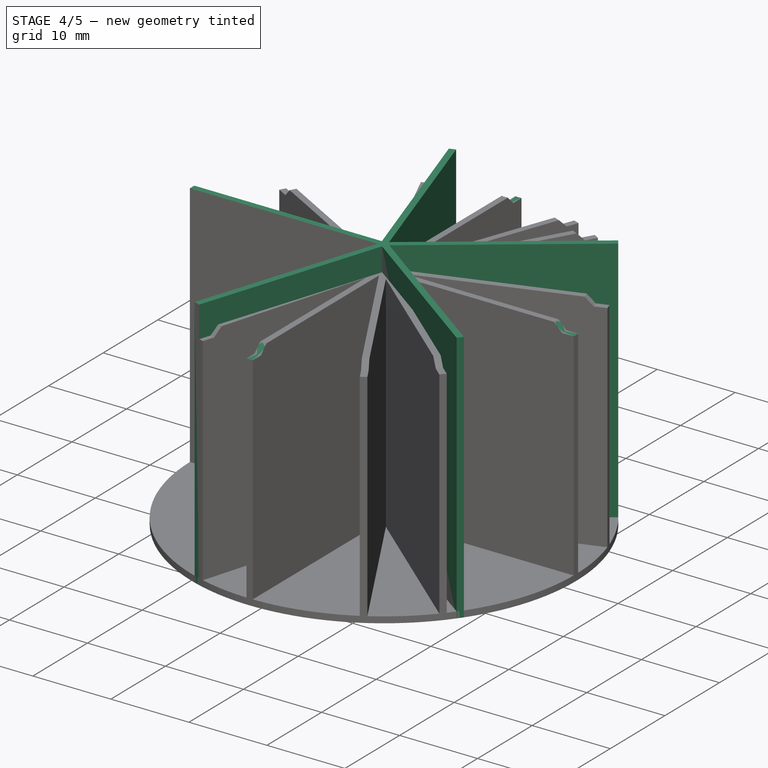
[diagram: stage 4 of 5 — iso view after this stage's code; geometry added in this stage tinted green]
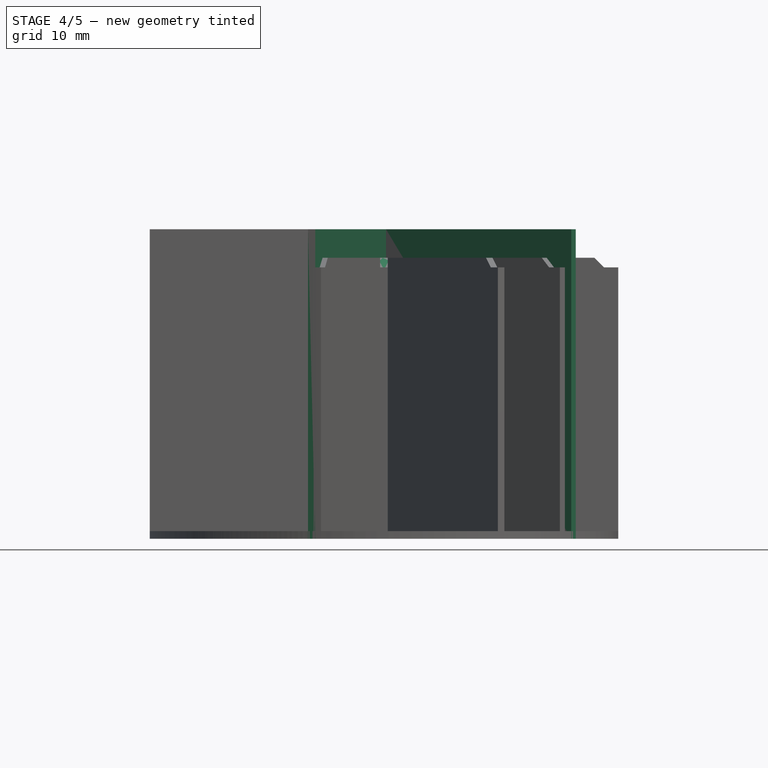
[diagram: stage 4 of 5 — front view after this stage's code; geometry added in this stage tinted green]
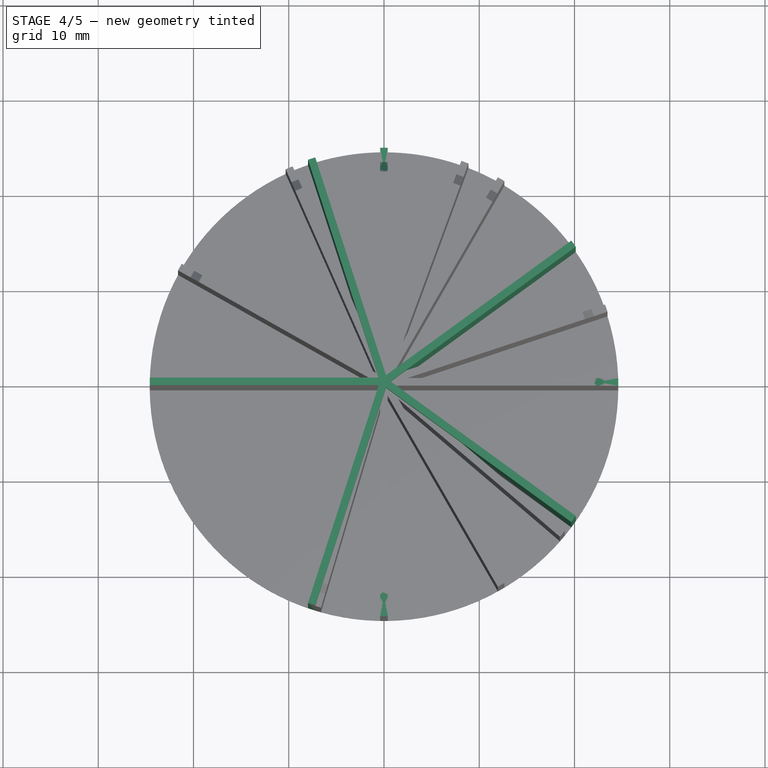
[diagram: stage 4 of 5 — top view after this stage's code; geometry added in this stage tinted green]
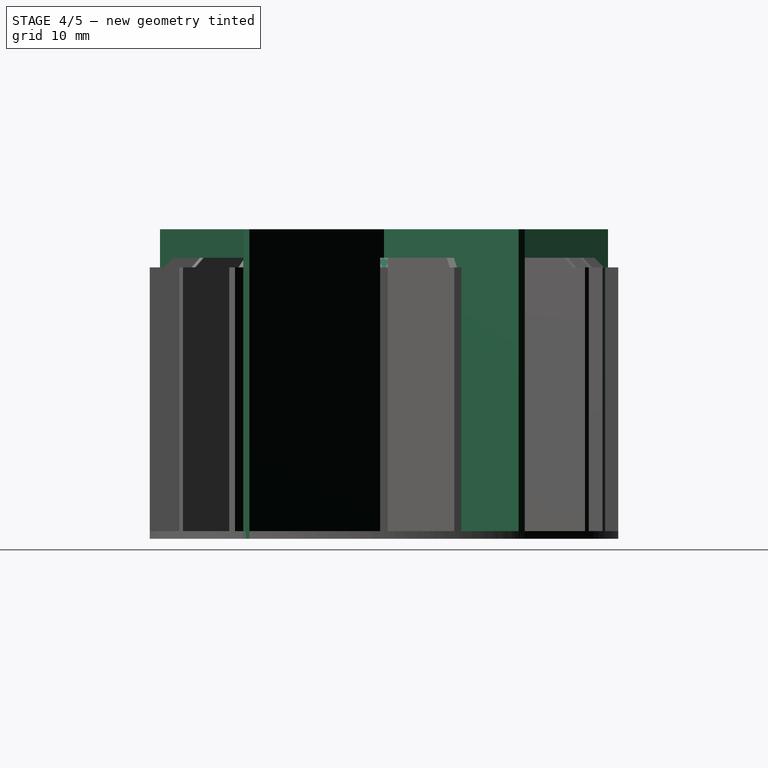
[diagram: stage 4 of 5 — right view after this stage's code; geometry added in this stage tinted green]
FEATURE [Sketcher::SketchObject] Sketch
  ArcFitTolerance = 1e-06
  AttachmentSupport = -> [XY_Plane002]
  FullyConstrained = true
  MakeInternals = false
  MapMode = 5
  sketch-geometry (1):
    g0: Circle CenterX=0 CenterY=0 CenterZ=0 NormalX=0 NormalY=0 NormalZ=1 AngleXU=0 Radius=24.6
  constraints (2):
    c: Diameter(g0) = 49.2  'Diameter'
    c: Coincident(g0,g-1)
FEATURE [PartDesign::Body] Body002  label="Template"
  AllowCompound = false
  Group = -> [Sketch]
  Origin = -> Origin002
FEATURE [PartDesign::ShapeBinder] ShapeBinder
  Support = -> [Sketch]
  TraceSupport = false
FEATURE [Sketcher::SketchObject] Sketch004
  ArcFitTolerance = 1e-06
  AttachmentSupport = -> [XY_Plane]
  ExternalGeometry = -> [ShapeBinder]
  FullyConstrained = true
  MakeInternals = false
  MapMode = 5
  sketch-geometry (26):
    g0: Circle [constr] CenterX=0 CenterY=0 CenterZ=0 NormalX=0 NormalY=0 NormalZ=1 AngleXU=0 Radius=24.6
    g1: LineSegment [constr] StartX=-7.60182 StartY=23.396 StartZ=0 EndX=-24.6 EndY=0 EndZ=0
    g2: LineSegment [constr] StartX=-24.6 StartY=0 StartZ=0 EndX=-7.60182 EndY=-23.396 EndZ=0
    g3: LineSegment [constr] StartX=-7.60182 StartY=-23.396 StartZ=0 EndX=19.9018 EndY=-14.4595 EndZ=0
    g4: LineSegment [constr] StartX=19.9018 StartY=-14.4595 StartZ=0 EndX=19.9018 EndY=14.4595 EndZ=0
    g5: LineSegment [constr] StartX=19.9018 StartY=14.4595 StartZ=0 EndX=-7.60182 EndY=23.396 EndZ=0
    g6: LineSegment [constr] StartX=-7.60182 StartY=23.396 StartZ=0 EndX=0 EndY=0 EndZ=0
    g7: LineSegment [constr] StartX=0 StartY=0 StartZ=0 EndX=19.9018 EndY=14.4595 EndZ=0
    g8: LineSegment [constr] StartX=0 StartY=0 StartZ=0 EndX=19.9018 EndY=-14.4595 EndZ=0
    g9: LineSegment [constr] StartX=0 StartY=0 StartZ=0 EndX=-7.60182 EndY=-23.396 EndZ=0
    g10: LineSegment [constr] StartX=0 StartY=0 StartZ=0 EndX=-24.6 EndY=0 EndZ=0
    g11: LineSegment StartX=-7.98124 StartY=23.2693 StartZ=0 EndX=-0.550553 EndY=0.4 EndZ=0
    g12: LineSegment StartX=-7.22039 StartY=23.5165 StartZ=0 EndX=0.210292 EndY=0.647214 EndZ=0
    g13: LineSegment StartX=19.6641 StartY=14.7812 StartZ=0 EndX=0.210292 EndY=0.647214 EndZ=0
    g14: LineSegment StartX=20.1343 StartY=14.134 StartZ=0 EndX=0.680521 EndY=0 EndZ=0
    g15: LineSegment StartX=20.1343 StartY=-14.134 StartZ=0 EndX=0.680521 EndY=1.8e-15 EndZ=0
    g16: LineSegment StartX=19.6641 StartY=-14.7812 StartZ=0 EndX=0.210292 EndY=-0.647214 EndZ=0
    g17: LineSegment StartX=-7.22039 StartY=-23.5165 StartZ=0 EndX=0.210292 EndY=-0.647214 EndZ=0
    g18: LineSegment StartX=-7.98124 StartY=-23.2693 StartZ=0 EndX=-0.550553 EndY=-0.4 EndZ=0
    g19: LineSegment StartX=-24.5967 StartY=-0.4 StartZ=0 EndX=-0.550553 EndY=-0.4 EndZ=0
    g20: LineSegment StartX=-24.5967 StartY=0.4 StartZ=0 EndX=-0.550553 EndY=0.4 EndZ=0
    g21: LineSegment StartX=-24.5967 StartY=0.4 StartZ=0 EndX=-24.5967 EndY=-0.4 EndZ=0
    g22: LineSegment StartX=-7.98124 StartY=23.2693 StartZ=0 EndX=-7.22039 EndY=23.5165 EndZ=0
    g23: LineSegment StartX=19.6641 StartY=14.7812 StartZ=0 EndX=20.1343 EndY=14.134 EndZ=0
    g24: LineSegment StartX=20.1343 StartY=-14.134 StartZ=0 EndX=19.6641 EndY=-14.7812 EndZ=0
    g25: LineSegment StartX=-7.98124 StartY=-23.2693 StartZ=0 EndX=-7.22039 EndY=-23.5165 EndZ=0
  constraints (67):
    c: PointOnObject(g1,g0)
    c: PointOnObject(g1,g0)
    c: Coincident(g1,g2)
    c: PointOnObject(g2,g0)
    c: Coincident(g2,g3)
    c: PointOnObject(g3,g0)
    c: Coincident(g3,g4)
    c: PointOnObject(g4,g0)
    c: Coincident(g4,g5)
    c: Coincident(g5,g1)
    c: Equal(g1,g2)
    c: Equal(g2,g3)
    c: Equal(g3,g4)
    c: Equal(g4,g5)
    c: Coincident(g6,g1)
    c: Coincident(g7,g4)
    c: Coincident(g8,g3)
    c: Coincident(g9,g2)
    c: Coincident(g10,g1)
    c: PointOnObject(g11,g0)
    c: PointOnObject(g13,g0)
    c: PointOnObject(g15,g0)
    c: PointOnObject(g17,g0)
    c: PointOnObject(g19,g0)
    c: Parallel(g19,g20)
    c: Parallel(g20,g10)
    c: Parallel(g11,g12)
    c: Parallel(g12,g6)
    c: Parallel(g13,g14)
    c: Parallel(g14,g7)
    c: Parallel(g15,g16)
    c: Parallel(g16,g8)
    c: Parallel(g17,g18)
    c: Parallel(g18,g9)
    c: Coincident(g21,g20)
    c: Coincident(g21,g19)
    c: Coincident(g22,g11)
    c: Coincident(g22,g12)
    c: Coincident(g23,g13)
    c: Coincident(g24,g15)
    c: Coincident(g25,g18)
    c: Coincident(g25,g17)
    c: Coincident(g24,g16)
    c: Coincident(g23,g14)
    c: Coincident(g12,g13)
    c: Coincident(g14,g15)
    c: Coincident(g17,g16)
    c: Coincident(g18,g19)
    c: Coincident(g11,g20)
    c: Symmetric(g19,g20,g10)
    c: Symmetric(g18,g17,g9)
    c: Symmetric(g16,g15,g8)
    c: Symmetric(g14,g13,g7)
    c: Symmetric(g11,g12,g6)
    c: Equal(g21,g22)
    c: Equal(g22,g23)
    c: Equal(g23,g24)
    c: Equal(g24,g25)
    c: Distance(g21) = 0.8
    c: Equal(g0,g-3)
    c: Coincident(g0,g6)
    c: Coincident(g0,g7)
    c: Coincident(g0,g8)
    c: Coincident(g0,g9)
    c: Coincident(g0,g10)
    c: Coincident(g0,g-3)
    c: Horizontal(g10)
FEATURE [PartDesign::Pad] Pad
  Direction = (0,0,1)
  Length = 32.5
  Length2 = 10
  Profile = -> Sketch004
  ReferenceAxis = -> Sketch004 [N_Axis]
  Suppressed = false
  Type = 0
FEATURE [PartDesign::Groove] Groove001
  Angle = 360
  Angle2 = 60
  Axis = (0,2e-16,1)
  Base = (0,0,0)
  BaseFeature = -> Fillet001
  Profile = -> Sketch007
  ReferenceAxis = -> Sketch007 [V_Axis]
  Reversed = true
  Suppressed = false
  Type = 0
FEATURE [PartDesign::Pad] Pad003
  BaseFeature = -> Groove001
  Direction = (0,0,1)
  Length = 0.8
  Length2 = 10
  Profile = -> Sketch008
  ReferenceAxis = -> Sketch008 [N_Axis]
  Refine = true
  Suppressed = true
  Type = 0
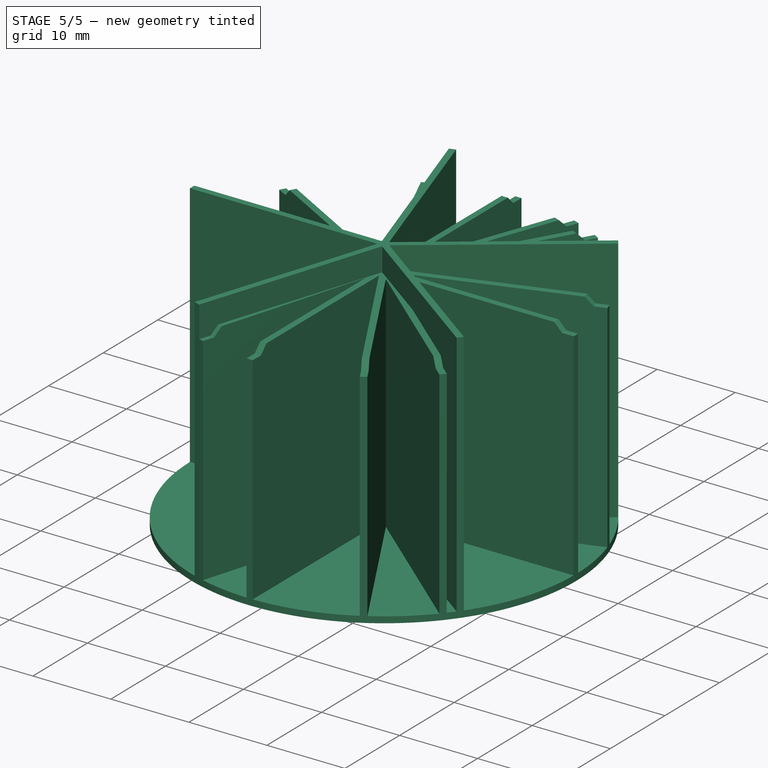
[diagram: stage 5 of 5 — iso view after this stage's code; geometry added in this stage tinted green]
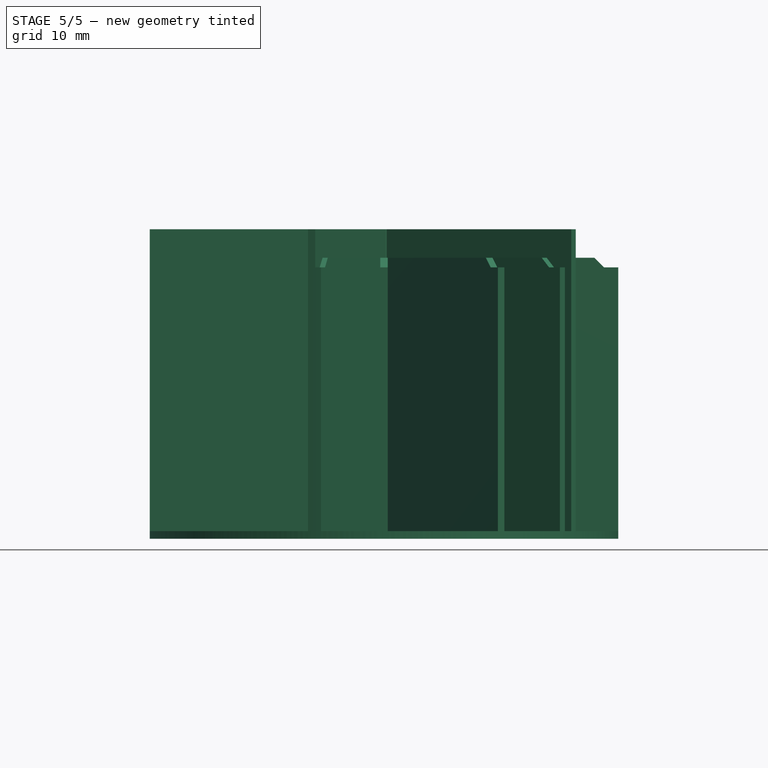
[diagram: stage 5 of 5 — front view after this stage's code; geometry added in this stage tinted green]
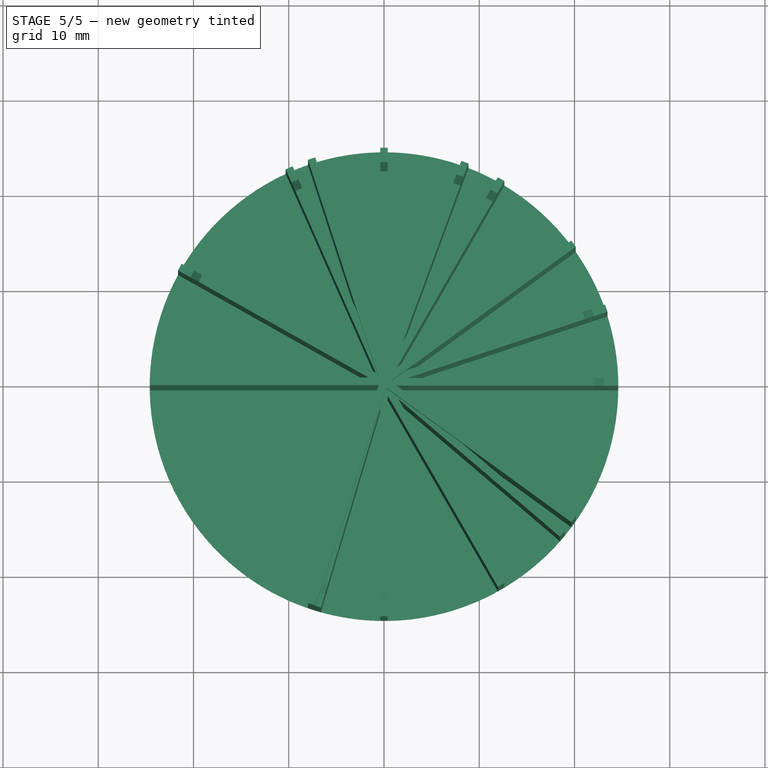
[diagram: stage 5 of 5 — top view after this stage's code; geometry added in this stage tinted green]
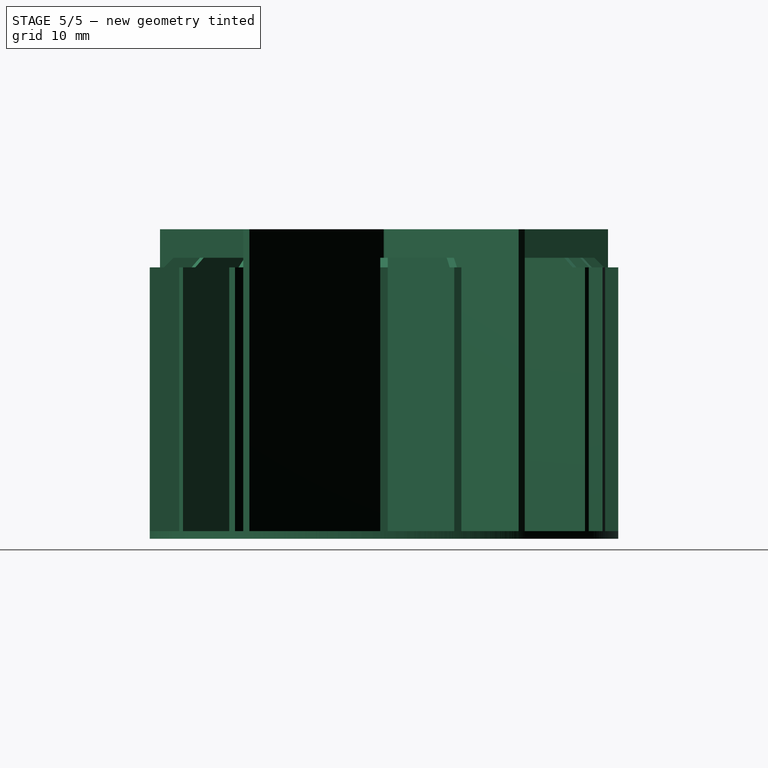
[diagram: stage 5 of 5 — right view after this stage's code; geometry added in this stage tinted green]
FEATURE [PartDesign::Fillet] Fillet
  Base = -> Pad [Edge38,Edge2,Edge11,Edge20,Edge29]
  BaseFeature = -> Pad
  Radius = 0.1
  SupportTransform = false
  Suppressed = false
  UseAllEdges = false
FEATURE [Sketcher::SketchObject] Sketch005
  ArcFitTolerance = 1e-06
  AttachmentSupport = -> [XZ_Plane]
  ExternalGeometry = -> [ShapeBinder]
  FullyConstrained = true
  MakeInternals = false
  MapMode = 5
  Placement = pos=(0,0,0) rot=(1,0,0;1.5708rad)
  expr: Constraints[2] = <<Pad>>.Length
  sketch-geometry (5):
    g0: LineSegment [constr] StartX=-24.6 StartY=0 StartZ=0 EndX=-24.6 EndY=32.5 EndZ=0
    g1: LineSegment StartX=-24.6 StartY=32.5 StartZ=0 EndX=-22.1 EndY=32.5 EndZ=0
    g2: LineSegment StartX=-22.1 StartY=32.5 StartZ=0 EndX=-23.1 EndY=31.5 EndZ=0
    g3: LineSegment StartX=-23.1 StartY=31.5 StartZ=0 EndX=-24.6 EndY=31.5 EndZ=0
    g4: LineSegment StartX=-24.6 StartY=31.5 StartZ=0 EndX=-24.6 EndY=32.5 EndZ=0
  constraints (14):
    c: Coincident(g0,g-3)
    c: Vertical(g0)
    c: DistanceY(g0,g0) = 32.5
    c: Coincident(g1,g0)
    c: Horizontal(g1)
    c: Coincident(g2,g1)
    c: Coincident(g3,g2)
    c: PointOnObject(g3,g0)
    c: Horizontal(g3)
    c: Coincident(g4,g3)
    c: Coincident(g4,g0)
    c: DistanceY(g3,g0) = 1
    c: Angle(g1,g2) = 0.785398
    c: DistanceX(g3,g3) = 1.5
FEATURE [PartDesign::Groove] Groove
  Angle = 360
  Angle2 = 60
  Axis = (0,2e-16,1)
  Base = (0,0,0)
  BaseFeature = -> Fillet
  Profile = -> Sketch005
  ReferenceAxis = -> Sketch005 [V_Axis]
  Reversed = true
  Suppressed = true
  Type = 0
FEATURE [Sketcher::SketchObject] Sketch006
  ArcFitTolerance = 1e-06
  AttachmentSupport = -> [XY_Plane]
  ExternalGeometry = -> [ShapeBinder]
  FullyConstrained = true
  MakeInternals = false
  MapMode = 5
  sketch-geometry (1):
    g0: Circle CenterX=0 CenterY=0 CenterZ=0 NormalX=0 NormalY=0 NormalZ=1 AngleXU=0 Radius=24.6
  constraints (2):
    c: Coincident(g0,g-3)
    c: Equal(g0,g-3)
FEATURE [PartDesign::Pad] Pad002
  BaseFeature = -> Groove
  Direction = (0,0,1)
  Length = 0.8
  Length2 = 10
  Profile = -> Sketch006
  ReferenceAxis = -> Sketch006 [N_Axis]
  Refine = true
  Suppressed = false
  Type = 0
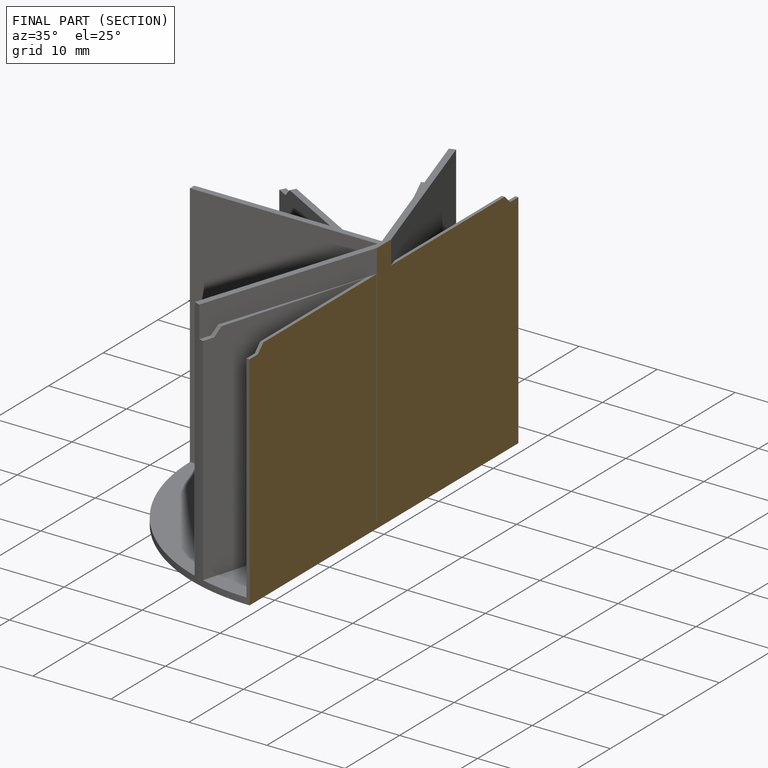
[diagram: finished part — half-section view (interior)]
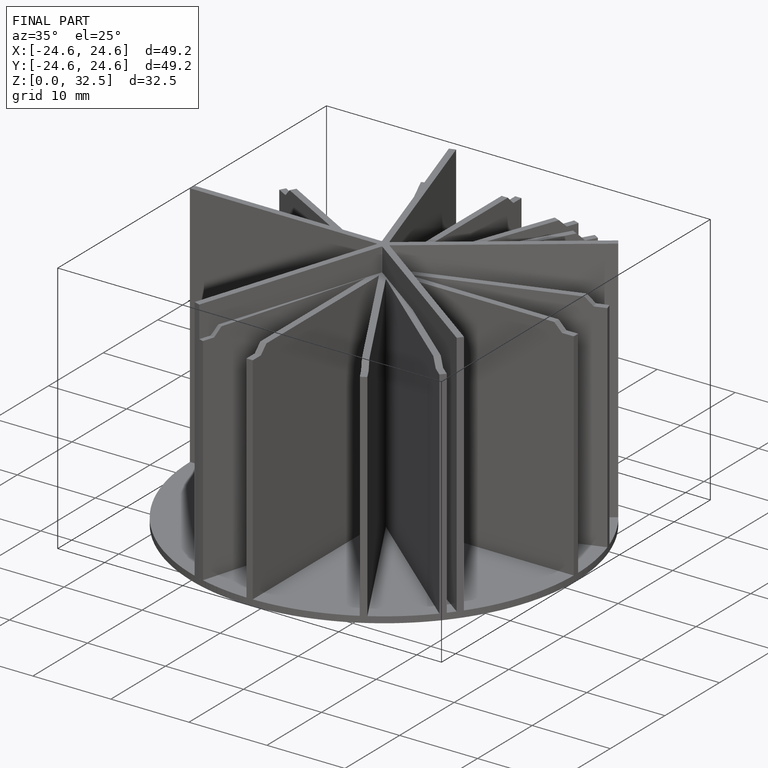
[diagram: finished part — iso view with bounding-box wireframe]
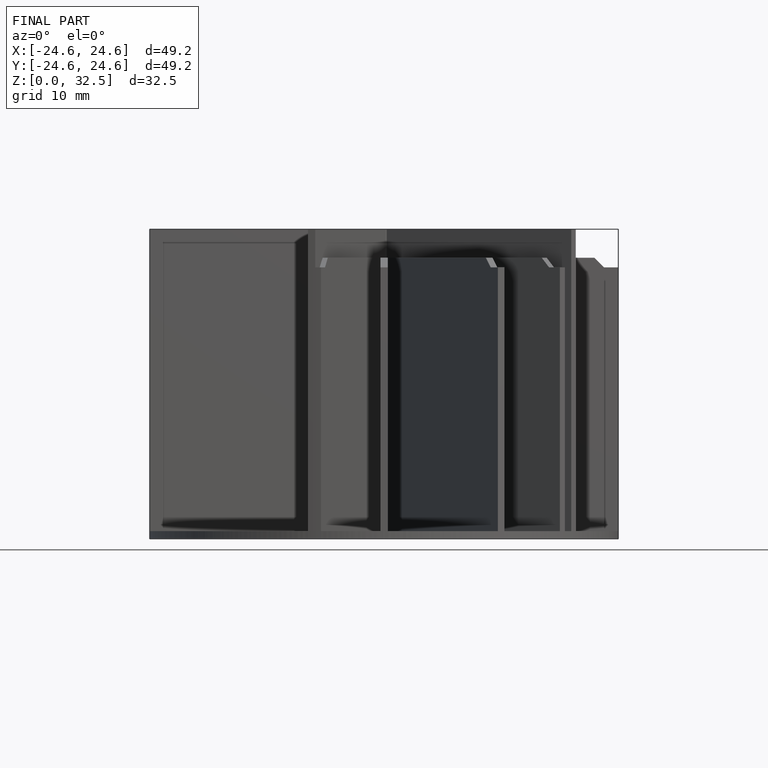
[diagram: finished part — front view with bounding-box wireframe]
